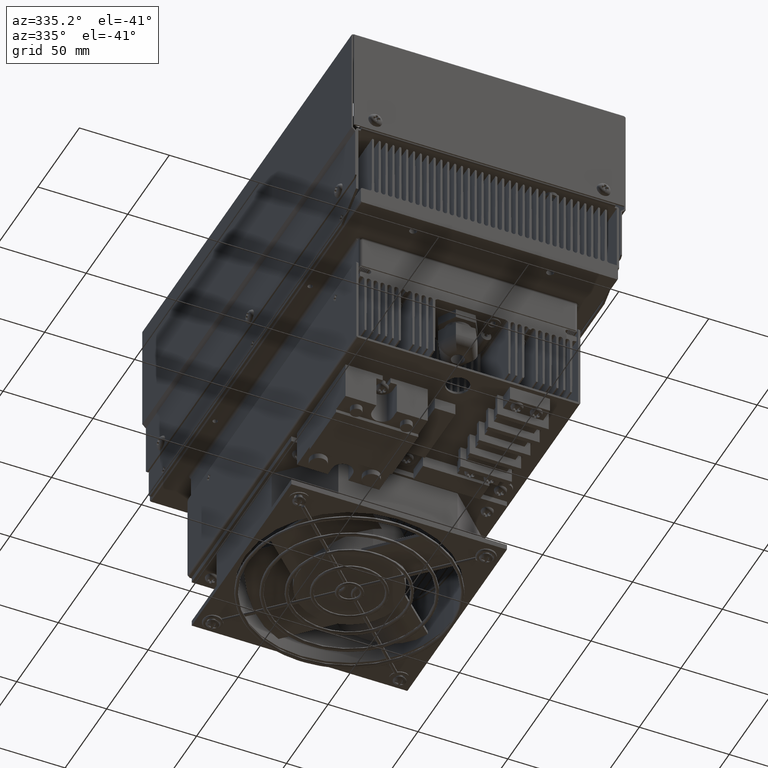
[diagram: clean part render]
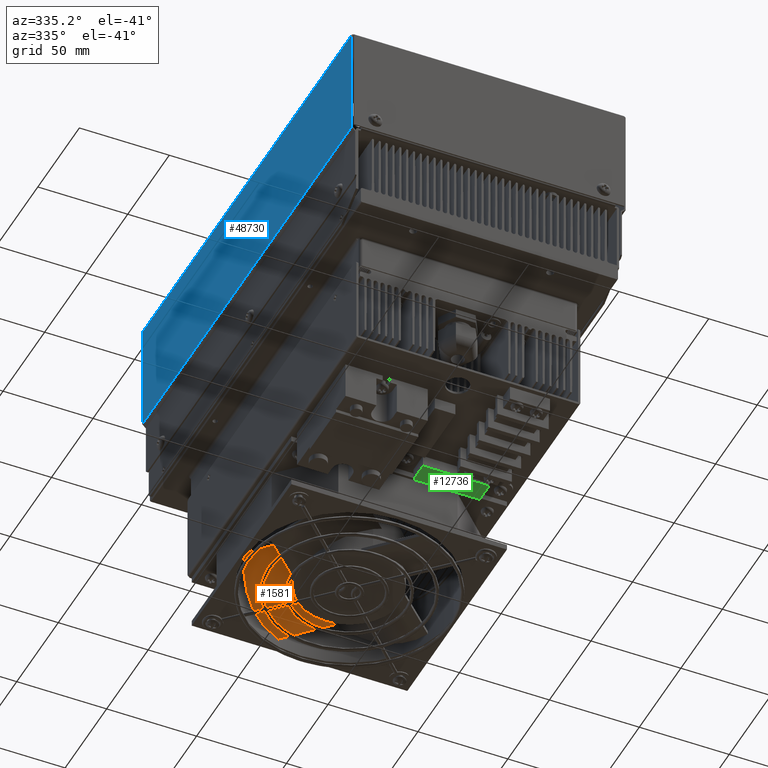
[diagram: same view with three faces highlighted in distinct colors, each labeled with its STEP entity id]
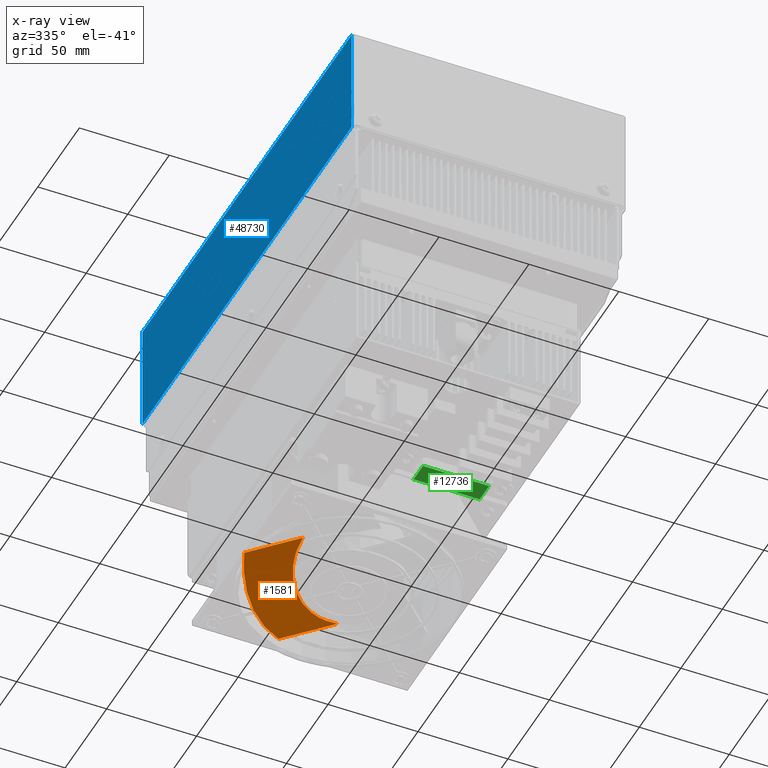
[diagram: x-ray of the same camera — body ghosted, the three highlighted faces saturated]
A machine part, auxiliary view with three faces highlighted in distinct colors.
The next image is the same camera in x-ray (body ghosted, the three faces saturated) — at least one of them is partly hidden behind the body in this view.
Their STEP definitions:

[orange] entity #1581 — the highlighted cylindrical surface (partial cylindrical patch) has radius 90.3045 mm, axis along (-0.6924, 0.7215, -0).
#55 = CARTESIAN_POINT ( 'NONE',  ( -0.04738717314359092200, -7.114795646301404400, 1.843333312979747600 ) ) ;
#874 = CARTESIAN_POINT ( 'NONE',  ( 1.305463384420090200, -5.816558237774122700, 1.093333312979752900 ) ) ;
#1581 = ADVANCED_FACE ( 'NONE', ( #72024 ), #69656, .T. ) ;
#1781 = ORIENTED_EDGE ( 'NONE', *, *, #86801, .F. ) ;
#4030 = CARTESIAN_POINT ( 'NONE',  ( 1.705449857835985600, -5.758880687810800800, 4.633418081744047800 ) ) ;
#4119 = B_SPLINE_CURVE_WITH_KNOTS ( 'NONE', 3,
 ( #35648, #20156, #81653, #43345, #97159, #51098, #5014, #58808, #12769, #66578, #20470, #74255, #28220, #81963 ),
 .UNSPECIFIED., .F., .F.,
 ( 4, 2, 2, 2, 2, 2, 4 ),
 ( 3.469446951953614200E-018, 0.005599312592328942400, 0.008398968888493389700, 0.01119862518465783600, 0.01679793777698675900, 0.01959759407315120700, 0.02239725036931565500 ),
 .UNSPECIFIED. ) ;
#4254 = CARTESIAN_POINT ( 'NONE',  ( 0.03585914442279513500, -5.078810167030616700, 1.153602030965011500 ) ) ;
#4585 = CARTESIAN_POINT ( 'NONE',  ( -0.8654648877678295900, -6.071975082444564200, 1.742896441168616800 ) ) ;
#5014 = CARTESIAN_POINT ( 'NONE',  ( 0.6003319342305790700, -5.886756468232509800, 1.190091510891345500 ) ) ;
#5269 = CARTESIAN_POINT ( 'NONE',  ( 0.8702065050723127900, -5.362991341579812500, 1.093333312979752000 ) ) ;
#6734 = CARTESIAN_POINT ( 'NONE',  ( 1.059614742927083200, -5.789366711723947600, 1.111646282537669800 ) ) ;
#6896 = CARTESIAN_POINT ( 'NONE',  ( -0.05543038710899334000, -7.070371654876026000, 1.823624105645735600 ) ) ;
#7214 = CARTESIAN_POINT ( 'NONE',  ( -0.02567601034134703300, -6.617321698384455600, 1.593284821045498800 ) ) ;
#7935 = CARTESIAN_POINT ( 'NONE',  ( 0.2423533538149489400, -6.141250406200319900, 1.332407957030187400 ) ) ;
#11782 = DIRECTION ( 'NONE',  ( 0.7215202973672935100, 0.6923932845478879500, 0.0000000000000000000 ) ) ;
#11979 = CARTESIAN_POINT ( 'NONE',  ( -0.1096774884844443400, -5.169493490823238200, 1.194052284779699700 ) ) ;
#12315 = CARTESIAN_POINT ( 'NONE',  ( -0.9179009318391417900, -6.207661853912791900, 1.843333312979748700 ) ) ;
#12769 = CARTESIAN_POINT ( 'NONE',  ( 0.7694306888198931800, -5.825005957973448100, 1.151467938912637700 ) ) ;
#13103 = LINE ( 'NONE', #14255, #31144 ) ;
#14255 = CARTESIAN_POINT ( 'NONE',  ( -0.6056122198688903600, -6.533087662270181000, 1.843333312979751100 ) ) ;
#14957 = CARTESIAN_POINT ( 'NONE',  ( 0.03854385634277098700, -6.433907360052843100, 1.493372504115033600 ) ) ;
#19386 = CARTESIAN_POINT ( 'NONE',  ( 0.4349496257245443800, -4.909424445385501400, 1.093333312979752000 ) ) ;
#19716 = CARTESIAN_POINT ( 'NONE',  ( -0.2136675565415255000, -5.243881092408472000, 1.229732634612826100 ) ) ;
#19903 = CARTESIAN_POINT ( 'NONE',  ( 0.2806722978107107400, -6.102656377185740900, 1.311175940739913300 ) ) ;
#20156 = CARTESIAN_POINT ( 'NONE',  ( 0.3308870803318323400, -6.054468712431856600, 1.284654501528639000 ) ) ;
#20470 = CARTESIAN_POINT ( 'NONE',  ( 0.9127401395109405700, -5.798384006409118100, 1.128873955981474200 ) ) ;
#21966 = DIRECTION ( 'NONE',  ( 0.6923932845478878400, -0.7215202973672934000, 6.776087392504117600E-016 ) ) ;
#22658 = CARTESIAN_POINT ( 'NONE',  ( 0.1048325555784312100, -6.318955810139531300, 1.430156925284757900 ) ) ;
#24007 = EDGE_LOOP ( 'NONE', ( #1781, #67352, #78975, #42184, #82667, #54632, #30997 ) ) ;
#24059 = LINE ( 'NONE', #5269, #82959 ) ;
#25338 = VERTEX_POINT ( 'NONE', #7935 ) ;
#25634 = B_SPLINE_CURVE_WITH_KNOTS ( 'NONE', 3,
 ( #39248, #85267, #46953, #874 ),
 .UNSPECIFIED., .F., .F.,
 ( 4, 4 ),
 ( 0.02239725036931565500, 0.02868481603538745200 ),
 .UNSPECIFIED. ) ;
#27122 = CARTESIAN_POINT ( 'NONE',  ( 0.3505593956650996900, -4.935717288743585000, 1.100673573280820200 ) ) ;
#27240 = DIRECTION ( 'NONE',  ( -0.6923932845478879500, 0.7215202973672935100, -0.0000000000000000000 ) ) ;
#27442 = CARTESIAN_POINT ( 'NONE',  ( -0.3743180017426637200, -5.377936861585273400, 1.299015737289567200 ) ) ;
#28116 = CARTESIAN_POINT ( 'NONE',  ( 0.2423533538149489400, -6.141250406200319900, 1.332407957030187400 ) ) ;
#28220 = CARTESIAN_POINT ( 'NONE',  ( 1.022971142995974700, -5.789366711723948500, 1.115303038614587200 ) ) ;
#28254 = B_SPLINE_CURVE_WITH_KNOTS ( 'NONE', 3,
 ( #60667, #6896, #76088, #30045, #83861, #37830, #91603, #45525, #99334, #53292, #7214, #61011, #14957, #68750, #22658, #76451, #30379, #84184, #38153, #91943 ),
 .UNSPECIFIED., .F., .F.,
 ( 4, 2, 2, 2, 2, 2, 2, 2, 2, 4 ),
 ( 6.206486903128535600E-017, 0.003696562456548731100, 0.007393124913097400700, 0.01108968736964607000, 0.01293796859792040500, 0.01478624982619473900, 0.02217937473929190700, 0.02402765596756617800, 0.02587593719584045000, 0.02957249965238893000 ),
 .UNSPECIFIED. ) ;
#30045 = CARTESIAN_POINT ( 'NONE',  ( -0.06596778993266033700, -6.938977085367010700, 1.760875501825496200 ) ) ;
#30067 = B_SPLINE_CURVE_WITH_KNOTS ( 'NONE', 3,
 ( #28116, #74169, #89652, #43571 ),
 .UNSPECIFIED., .F., .F.,
 ( 4, 4 ),
 ( 0.0000000000000000000, 1.000000000000000000 ),
 .UNSPECIFIED. ) ;
#30379 = CARTESIAN_POINT ( 'NONE',  ( 0.1419549119248258400, -6.263192472501856400, 1.399476445675990300 ) ) ;
#30997 = ORIENTED_EDGE ( 'NONE', *, *, #42940, .F. ) ;
#31144 = VECTOR ( 'NONE', #21966, 39.37007874015748900 ) ;
#34414 = EDGE_CURVE ( 'NONE', #46239, #90719, #24059, .T. ) ;
#35181 = CARTESIAN_POINT ( 'NONE',  ( -0.5432054481504260400, -5.555267304180435200, 1.400325305711447100 ) ) ;
#35648 = CARTESIAN_POINT ( 'NONE',  ( 0.2806722978107107400, -6.102656377185740900, 1.311175940739913300 ) ) ;
#37830 = CARTESIAN_POINT ( 'NONE',  ( -0.06129225871192423000, -6.809180225949812200, 1.695089443865160000 ) ) ;
#37924 = CARTESIAN_POINT ( 'NONE',  ( 0.4349496257245443800, -4.909424445385501400, 1.093333312979752000 ) ) ;
#38153 = CARTESIAN_POINT ( 'NONE',  ( 0.2109315851534752700, -6.174466363645753300, 1.350675936927577600 ) ) ;
#39248 = CARTESIAN_POINT ( 'NONE',  ( 1.059614742927083200, -5.789366711723947600, 1.111646282537669800 ) ) ;
#40589 = EDGE_CURVE ( 'NONE', #89591, #93857, #4119, .T. ) ;
#42184 = ORIENTED_EDGE ( 'NONE', *, *, #40589, .F. ) ;
#42899 = CARTESIAN_POINT ( 'NONE',  ( -0.6845310450636693500, -5.742296649451061400, 1.516808552240996900 ) ) ;
#42940 = EDGE_CURVE ( 'NONE', #50835, #96106, #13103, .T. ) ;
#43345 = CARTESIAN_POINT ( 'NONE',  ( 0.4736279656095570600, -5.953388396765522100, 1.228425846463975200 ) ) ;
#43571 = CARTESIAN_POINT ( 'NONE',  ( 0.2806722978107107400, -6.102656377185740900, 1.311175940739913300 ) ) ;
#44506 = EDGE_CURVE ( 'NONE', #96106, #25338, #28254, .T. ) ;
#45525 = CARTESIAN_POINT ( 'NONE',  ( -0.04535481237529826600, -6.701904806612363400, 1.638621608423102200 ) ) ;
#46239 = VERTEX_POINT ( 'NONE', #92756 ) ;
#46953 = CARTESIAN_POINT ( 'NONE',  ( 1.223893411380500700, -5.798291055898350700, 1.097621442477996400 ) ) ;
#48120 = EDGE_CURVE ( 'NONE', #25338, #89591, #30067, .T. ) ;
#50333 = CARTESIAN_POINT ( 'NONE',  ( 0.1117319163731481700, -5.038470226999755200, 1.137272167073492000 ) ) ;
#50649 = CARTESIAN_POINT ( 'NONE',  ( -0.8008996428010269900, -5.937616251219735900, 1.647766484675184100 ) ) ;
#50835 = VERTEX_POINT ( 'NONE', #97880 ) ;
#51098 = CARTESIAN_POINT ( 'NONE',  ( 0.5674195546991593900, -5.902118072552024600, 1.199109439870957200 ) ) ;
#53292 = CARTESIAN_POINT ( 'NONE',  ( -0.03118879351334731200, -6.638244783197520400, 1.604561103903346500 ) ) ;
#54632 = ORIENTED_EDGE ( 'NONE', *, *, #44506, .F. ) ;
#58036 = CARTESIAN_POINT ( 'NONE',  ( -0.07375485042501316000, -5.145946738011887500, 1.183270592384318300 ) ) ;
#58376 = CARTESIAN_POINT ( 'NONE',  ( -0.8935949972506740400, -6.139648501369258300, 1.792290898273957200 ) ) ;
#58808 = CARTESIAN_POINT ( 'NONE',  ( 0.7003890283855330700, -5.845827554938931100, 1.165264476593681300 ) ) ;
#60667 = CARTESIAN_POINT ( 'NONE',  ( -0.04738717314359092200, -7.114795646301404400, 1.843333312979747600 ) ) ;
#61011 = CARTESIAN_POINT ( 'NONE',  ( 0.004836402795985564800, -6.513697523406004400, 1.537215086889828700 ) ) ;
#63544 = AXIS2_PLACEMENT_3D ( 'NONE', #4030, #27240, #11782 ) ;
#64402 = EDGE_CURVE ( 'NONE', #93857, #46239, #25634, .T. ) ;
#65817 = CARTESIAN_POINT ( 'NONE',  ( -0.1797076895901961700, -5.218516839914764600, 1.217310864924211300 ) ) ;
#66489 = DIRECTION ( 'NONE',  ( -0.6923932845478871800, 0.7215202973672940600, -0.0000000000000000000 ) ) ;
#66578 = CARTESIAN_POINT ( 'NONE',  ( 0.8764312454466656200, -5.803785347969661500, 1.134110054148583300 ) ) ;
#67352 = ORIENTED_EDGE ( 'NONE', *, *, #34414, .F. ) ;
#68750 = CARTESIAN_POINT ( 'NONE',  ( 0.09322841768647866000, -6.337990019021725100, 1.440628684820070700 ) ) ;
#69656 = CYLINDRICAL_SURFACE ( 'NONE', #63544, 3.555296710320802400 ) ;
#72024 = FACE_OUTER_BOUND ( 'NONE', #24007, .T. ) ;
#73467 = CARTESIAN_POINT ( 'NONE',  ( -0.3124947132575340800, -5.322388158423601500, 1.269390448426654900 ) ) ;
#74169 = CARTESIAN_POINT ( 'NONE',  ( 0.2548820714076140400, -6.128006296523130600, 1.325124014372828200 ) ) ;
#74255 = CARTESIAN_POINT ( 'NONE',  ( 0.9862649738746078800, -5.791152858946834800, 1.119439371641973300 ) ) ;
#76088 = CARTESIAN_POINT ( 'NONE',  ( -0.06065113209429561600, -7.026375988270092200, 1.803085413278949600 ) ) ;
#76451 = CARTESIAN_POINT ( 'NONE',  ( 0.1292001338621597800, -6.281554083655884700, 1.409579167886999800 ) ) ;
#76642 = B_SPLINE_CURVE_WITH_KNOTS ( 'NONE', 3,
 ( #19386, #27122, #96375, #50333, #4254, #58036, #11979, #65817, #19716, #73467, #27442, #81221, #35181, #88973, #42899, #96724, #50649, #4585, #58376, #12315 ),
 .UNSPECIFIED., .F., .F.,
 ( 4, 2, 2, 2, 2, 2, 2, 2, 2, 4 ),
 ( 1.955241913321383200E-016, 0.006659441609515332600, 0.01331888321903047100, 0.01664860402378801400, 0.01997832482854555700, 0.02663776643806065000, 0.03329720804757575100, 0.03995664965709083700, 0.04661609126660593000, 0.05327553287612102300 ),
 .UNSPECIFIED. ) ;
#78975 = ORIENTED_EDGE ( 'NONE', *, *, #64402, .F. ) ;
#81221 = CARTESIAN_POINT ( 'NONE',  ( -0.4902155541383795300, -5.494928142806208400, 1.364793481363112200 ) ) ;
#81653 = CARTESIAN_POINT ( 'NONE',  ( 0.3853789740187151300, -6.011055897015185500, 1.260719011410414800 ) ) ;
#81963 = CARTESIAN_POINT ( 'NONE',  ( 1.059614742927083200, -5.789366711723947600, 1.111646282537669800 ) ) ;
#82667 = ORIENTED_EDGE ( 'NONE', *, *, #48120, .F. ) ;
#82959 = VECTOR ( 'NONE', #66489, 39.37007874015748900 ) ;
#83861 = CARTESIAN_POINT ( 'NONE',  ( -0.06605997917116275500, -6.895575140690656500, 1.739201723530754400 ) ) ;
#84184 = CARTESIAN_POINT ( 'NONE',  ( 0.1819557162012280800, -6.209136640149518300, 1.369739355392160000 ) ) ;
#85267 = CARTESIAN_POINT ( 'NONE',  ( 1.141910216526381500, -5.789366711723947600, 1.103433812317690300 ) ) ;
#86801 = EDGE_CURVE ( 'NONE', #90719, #50835, #76642, .T. ) ;
#88973 = CARTESIAN_POINT ( 'NONE',  ( -0.6403603033182986300, -5.678944271158012900, 1.476329088209294300 ) ) ;
#89591 = VERTEX_POINT ( 'NONE', #19903 ) ;
#89652 = CARTESIAN_POINT ( 'NONE',  ( 0.2676634842813041500, -6.115140038644140600, 1.318046675609387800 ) ) ;
#90719 = VERTEX_POINT ( 'NONE', #37924 ) ;
#91603 = CARTESIAN_POINT ( 'NONE',  ( -0.05643147828698601800, -6.766187937302829500, 1.672649579115421700 ) ) ;
#91943 = CARTESIAN_POINT ( 'NONE',  ( 0.2423533538149489400, -6.141250406200319900, 1.332407957030187400 ) ) ;
#92756 = CARTESIAN_POINT ( 'NONE',  ( 1.305463384420090200, -5.816558237774122700, 1.093333312979752900 ) ) ;
#93857 = VERTEX_POINT ( 'NONE', #6734 ) ;
#96106 = VERTEX_POINT ( 'NONE', #55 ) ;
#96375 = CARTESIAN_POINT ( 'NONE',  ( 0.2690825192929337500, -4.966925242084228900, 1.110806737974530800 ) ) ;
#96724 = CARTESIAN_POINT ( 'NONE',  ( -0.7648021004202014700, -5.871631873736371100, 1.602526924117373900 ) ) ;
#97159 = CARTESIAN_POINT ( 'NONE',  ( 0.5041350228665795200, -5.935415389429712400, 1.218264054000481000 ) ) ;
#97880 = CARTESIAN_POINT ( 'NONE',  ( -0.9179009318391417900, -6.207661853912791900, 1.843333312979748700 ) ) ;
#99334 = CARTESIAN_POINT ( 'NONE',  ( -0.04102354900068251600, -6.680505588690567500, 1.627213279178784100 ) ) ;

[blue] entity #48730 — the highlighted planar face has unit normal (-1, 0, 0).
#5508 = VECTOR ( 'NONE', #43676, 39.37007874015748100 ) ;
#9611 = CARTESIAN_POINT ( 'NONE',  ( -1.940385257072118500, -14.01040000000000400, 6.919725254076704200 ) ) ;
#12556 = CARTESIAN_POINT ( 'NONE',  ( -1.940385257072118500, -3.594399999999998500, 6.919725254076706000 ) ) ;
#17358 = DIRECTION ( 'NONE',  ( 0.0000000000000000000, 1.000000000000000000, 0.0000000000000000000 ) ) ;
#20983 = PLANE ( 'NONE',  #91425 ) ;
#26697 = CARTESIAN_POINT ( 'NONE',  ( -1.940385257072117000, -13.51440000000000200, 5.516225254076705800 ) ) ;
#27953 = LINE ( 'NONE', #50094, #53280 ) ;
#34083 = ORIENTED_EDGE ( 'NONE', *, *, #63067, .T. ) ;
#34619 = DIRECTION ( 'NONE',  ( 0.0000000000000000000, 1.000000000000000000, -0.0000000000000000000 ) ) ;
#36472 = DIRECTION ( 'NONE',  ( -1.000000000000000000, 0.0000000000000000000, 0.0000000000000000000 ) ) ;
#38198 = VERTEX_POINT ( 'NONE', #12556 ) ;
#39070 = EDGE_CURVE ( 'NONE', #66789, #53170, #27953, .T. ) ;
#39504 = CARTESIAN_POINT ( 'NONE',  ( -1.940385257072117400, -13.51440000000000200, 6.919725254076706000 ) ) ;
#42162 = DIRECTION ( 'NONE',  ( 0.0000000000000000000, -0.0000000000000000000, 1.000000000000000000 ) ) ;
#43676 = DIRECTION ( 'NONE',  ( 0.0000000000000000000, -0.0000000000000000000, -1.000000000000000000 ) ) ;
#44282 = CARTESIAN_POINT ( 'NONE',  ( -1.940385257072117000, -13.51440000000000000, 9.339725254076707700 ) ) ;
#45218 = EDGE_CURVE ( 'NONE', #53170, #38198, #69308, .T. ) ;
#46803 = VERTEX_POINT ( 'NONE', #39504 ) ;
#48730 = ADVANCED_FACE ( 'NONE', ( #62731 ), #20983, .T. ) ;
#50094 = CARTESIAN_POINT ( 'NONE',  ( -1.940385257072117000, -14.01040000000000400, 9.339725254076707700 ) ) ;
#51766 = EDGE_CURVE ( 'NONE', #46803, #38198, #62439, .T. ) ;
#53170 = VERTEX_POINT ( 'NONE', #88928 ) ;
#53280 = VECTOR ( 'NONE', #34619, 39.37007874015748100 ) ;
#54773 = VECTOR ( 'NONE', #42162, 39.37007874015748100 ) ;
#59325 = CARTESIAN_POINT ( 'NONE',  ( -1.940385257072117000, -14.01040000000000400, 6.798725254076705600 ) ) ;
#60012 = VECTOR ( 'NONE', #17358, 39.37007874015748100 ) ;
#62439 = LINE ( 'NONE', #9611, #60012 ) ;
#62731 = FACE_OUTER_BOUND ( 'NONE', #97333, .T. ) ;
#63067 = EDGE_CURVE ( 'NONE', #46803, #66789, #77590, .T. ) ;
#66789 = VERTEX_POINT ( 'NONE', #44282 ) ;
#66974 = ORIENTED_EDGE ( 'NONE', *, *, #45218, .T. ) ;
#69308 = LINE ( 'NONE', #97483, #5508 ) ;
#69536 = ORIENTED_EDGE ( 'NONE', *, *, #51766, .F. ) ;
#74564 = ORIENTED_EDGE ( 'NONE', *, *, #39070, .T. ) ;
#77590 = LINE ( 'NONE', #26697, #54773 ) ;
#88928 = CARTESIAN_POINT ( 'NONE',  ( -1.940385257072118100, -3.594400000000000700, 9.339725254076707700 ) ) ;
#90252 = DIRECTION ( 'NONE',  ( 0.0000000000000000000, 0.0000000000000000000, 1.000000000000000000 ) ) ;
#91425 = AXIS2_PLACEMENT_3D ( 'NONE', #59325, #36472, #90252 ) ;
#97333 = EDGE_LOOP ( 'NONE', ( #69536, #34083, #74564, #66974 ) ) ;
#97483 = CARTESIAN_POINT ( 'NONE',  ( -1.940385257072118700, -3.594400000000000700, 9.553225254076707500 ) ) ;

[green] entity #12736 — the highlighted planar face has unit normal (0, 0, 1).
#1102 = CARTESIAN_POINT ( 'NONE',  ( 2.774628258359583800, -9.379395603007076000, 2.093333312979750400 ) ) ;
#3576 = ORIENTED_EDGE ( 'NONE', *, *, #25108, .F. ) ;
#10566 = ORIENTED_EDGE ( 'NONE', *, *, #95978, .F. ) ;
#11908 = VERTEX_POINT ( 'NONE', #85471 ) ;
#12736 = ADVANCED_FACE ( 'NONE', ( #79596 ), #89373, .F. ) ;
#14915 = EDGE_CURVE ( 'NONE', #21920, #58015, #36560, .T. ) ;
#16085 = CARTESIAN_POINT ( 'NONE',  ( 2.774628258359582900, -9.604395603007075600, 2.093333312979750900 ) ) ;
#16117 = VECTOR ( 'NONE', #16424, 39.37007874015748100 ) ;
#16424 = DIRECTION ( 'NONE',  ( 0.0000000000000000000, 1.000000000000000000, 0.0000000000000000000 ) ) ;
#20946 = EDGE_CURVE ( 'NONE', #53208, #11908, #92782, .T. ) ;
#21920 = VERTEX_POINT ( 'NONE', #96847 ) ;
#24921 = AXIS2_PLACEMENT_3D ( 'NONE', #73876, #97107, #51040 ) ;
#25108 = EDGE_CURVE ( 'NONE', #11908, #21920, #39279, .T. ) ;
#27295 = CARTESIAN_POINT ( 'NONE',  ( 2.239628258359582300, -9.379395603007076000, 2.093333312979750900 ) ) ;
#33364 = CARTESIAN_POINT ( 'NONE',  ( 1.324628258359582100, -9.604395603007077400, 2.093333312979750900 ) ) ;
#36560 = LINE ( 'NONE', #16085, #16117 ) ;
#37416 = VECTOR ( 'NONE', #81395, 39.37007874015748100 ) ;
#39279 = LINE ( 'NONE', #74803, #77728 ) ;
#43182 = CARTESIAN_POINT ( 'NONE',  ( 1.324628258359582100, -9.379395603007076000, 2.093333312979750400 ) ) ;
#51040 = DIRECTION ( 'NONE',  ( 1.000000000000000000, 0.0000000000000000000, 0.0000000000000000000 ) ) ;
#51664 = DIRECTION ( 'NONE',  ( 1.000000000000000000, 0.0000000000000000000, 0.0000000000000000000 ) ) ;
#53208 = VERTEX_POINT ( 'NONE', #43182 ) ;
#58015 = VERTEX_POINT ( 'NONE', #1102 ) ;
#66593 = EDGE_LOOP ( 'NONE', ( #3576, #97730, #10566, #77046 ) ) ;
#69892 = VECTOR ( 'NONE', #94912, 39.37007874015748100 ) ;
#73876 = CARTESIAN_POINT ( 'NONE',  ( 1.324628258359582100, -9.829395603007078800, 2.093333312979750900 ) ) ;
#74803 = CARTESIAN_POINT ( 'NONE',  ( 2.239628258359582300, -9.829395603007077000, 2.093333312979750900 ) ) ;
#77046 = ORIENTED_EDGE ( 'NONE', *, *, #14915, .F. ) ;
#77728 = VECTOR ( 'NONE', #51664, 39.37007874015748100 ) ;
#79596 = FACE_OUTER_BOUND ( 'NONE', #66593, .T. ) ;
#81395 = DIRECTION ( 'NONE',  ( -1.000000000000000000, -0.0000000000000000000, -0.0000000000000000000 ) ) ;
#85471 = CARTESIAN_POINT ( 'NONE',  ( 1.324628258359582100, -9.829395603007078800, 2.093333312979750400 ) ) ;
#89373 = PLANE ( 'NONE',  #24921 ) ;
#92782 = LINE ( 'NONE', #33364, #69892 ) ;
#94912 = DIRECTION ( 'NONE',  ( -0.0000000000000000000, -1.000000000000000000, -0.0000000000000000000 ) ) ;
#95978 = EDGE_CURVE ( 'NONE', #58015, #53208, #98726, .T. ) ;
#96847 = CARTESIAN_POINT ( 'NONE',  ( 2.774628258359582900, -9.829395603007078800, 2.093333312979750400 ) ) ;
#97107 = DIRECTION ( 'NONE',  ( 0.0000000000000000000, 0.0000000000000000000, 1.000000000000000000 ) ) ;
#97730 = ORIENTED_EDGE ( 'NONE', *, *, #20946, .F. ) ;
#98726 = LINE ( 'NONE', #27295, #37416 ) ;